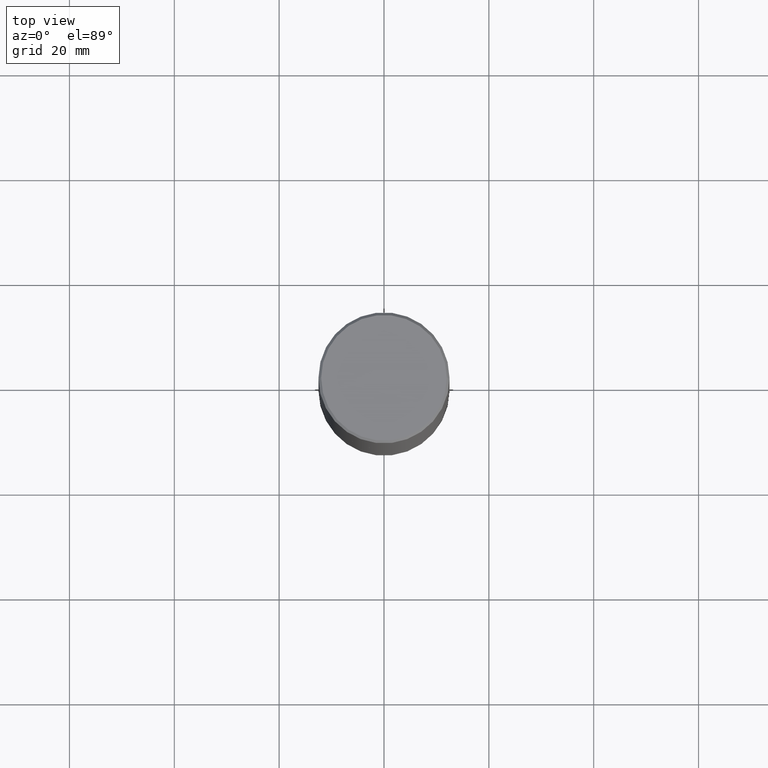
[diagram: clean part render]
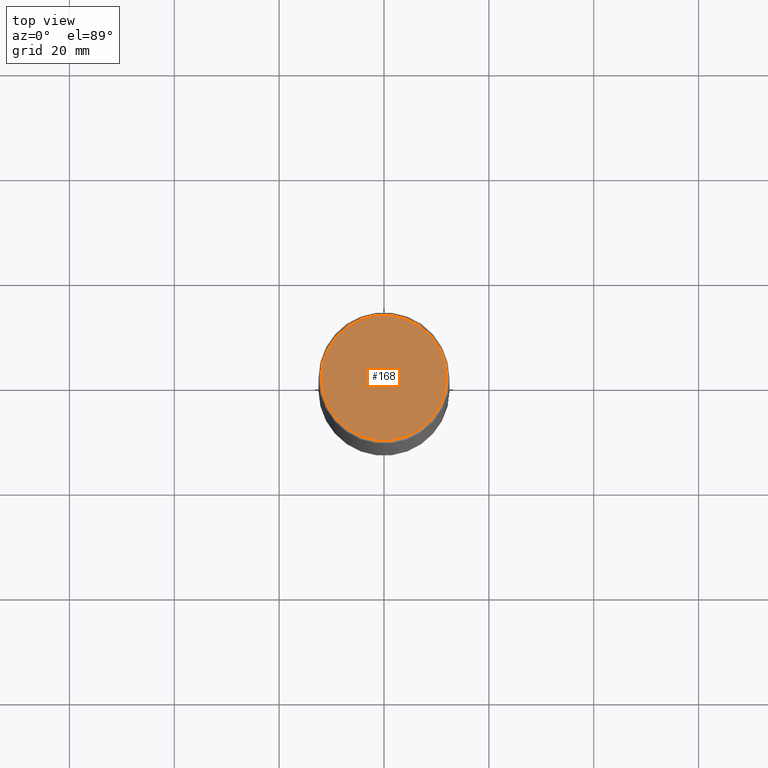
[diagram: same view with one face highlighted and labeled with its STEP entity id]
A machine part, top view. The second image highlights one B-rep face of the part: STEP entity #168.
In plain terms, the highlighted planar face has unit normal (0, -0, -1).
Its self-contained STEP definition (entity closure, byte-faithful):
#13 = VERTEX_POINT ( 'NONE', #166 ) ;
#49 = DIRECTION ( 'NONE',  ( -1.000000000000000000, 6.982962677686265922E-15, -4.876176775795935793E-29 ) ) ;
#60 = DIRECTION ( 'NONE',  ( 1.000000000000000000, -6.982962677686265922E-15, 4.876006802227162976E-29 ) ) ;
#65 = ORIENTED_EDGE ( 'NONE', *, *, #158, .T. ) ;
#75 = AXIS2_PLACEMENT_3D ( 'NONE', #295, #326, #124 ) ;
#86 = AXIS2_PLACEMENT_3D ( 'NONE', #175, #267, #60 ) ;
#98 = CARTESIAN_POINT ( 'NONE',  ( 3.297005828269567997E-15, 0.4721499999999996255, -1.644234401644689488E-15 ) ) ;
#99 = DIRECTION ( 'NONE',  ( 2.438088387897960049E-29, -3.491481338843145188E-15, -1.000000000000000000 ) ) ;
#101 = CIRCLE ( 'NONE', #86, 0.4721499999999996255 ) ;
#124 = DIRECTION ( 'NONE',  ( 1.000000000000000000, -6.982962677686265922E-15, 4.876006802227162976E-29 ) ) ;
#146 = EDGE_LOOP ( 'NONE', ( #65, #328 ) ) ;
#151 = VERTEX_POINT ( 'NONE', #178 ) ;
#158 = EDGE_CURVE ( 'NONE', #151, #13, #356, .T. ) ;
#166 = CARTESIAN_POINT ( 'NONE',  ( 0.4721499999999996255, -3.342703923013973396E-15, 8.537024980224040028E-18 ) ) ;
#168 = ADVANCED_FACE ( 'NONE', ( #174 ), #287, .F. ) ;
#174 = FACE_OUTER_BOUND ( 'NONE', #146, .T. ) ;
#175 = CARTESIAN_POINT ( 'NONE',  ( -2.087702828670439639E-46, 2.980686340760894400E-32, 8.537024980200822558E-18 ) ) ;
#178 = CARTESIAN_POINT ( 'NONE',  ( -0.4721499999999996255, 3.331920641657999252E-15, 8.537024980177643606E-18 ) ) ;
#205 = AXIS2_PLACEMENT_3D ( 'NONE', #98, #99, #49 ) ;
#267 = DIRECTION ( 'NONE',  ( -2.445468806185136597E-29, 3.491481338843145583E-15, 1.000000000000000000 ) ) ;
#287 = PLANE ( 'NONE',  #205 ) ;
#295 = CARTESIAN_POINT ( 'NONE',  ( -2.087702828670439639E-46, 2.980686340760894400E-32, 8.537024980200822558E-18 ) ) ;
#313 = EDGE_CURVE ( 'NONE', #13, #151, #101, .T. ) ;
#326 = DIRECTION ( 'NONE',  ( -2.445468806185136597E-29, 3.491481338843145583E-15, 1.000000000000000000 ) ) ;
#328 = ORIENTED_EDGE ( 'NONE', *, *, #313, .T. ) ;
#356 = CIRCLE ( 'NONE', #75, 0.4721499999999996255 ) ;